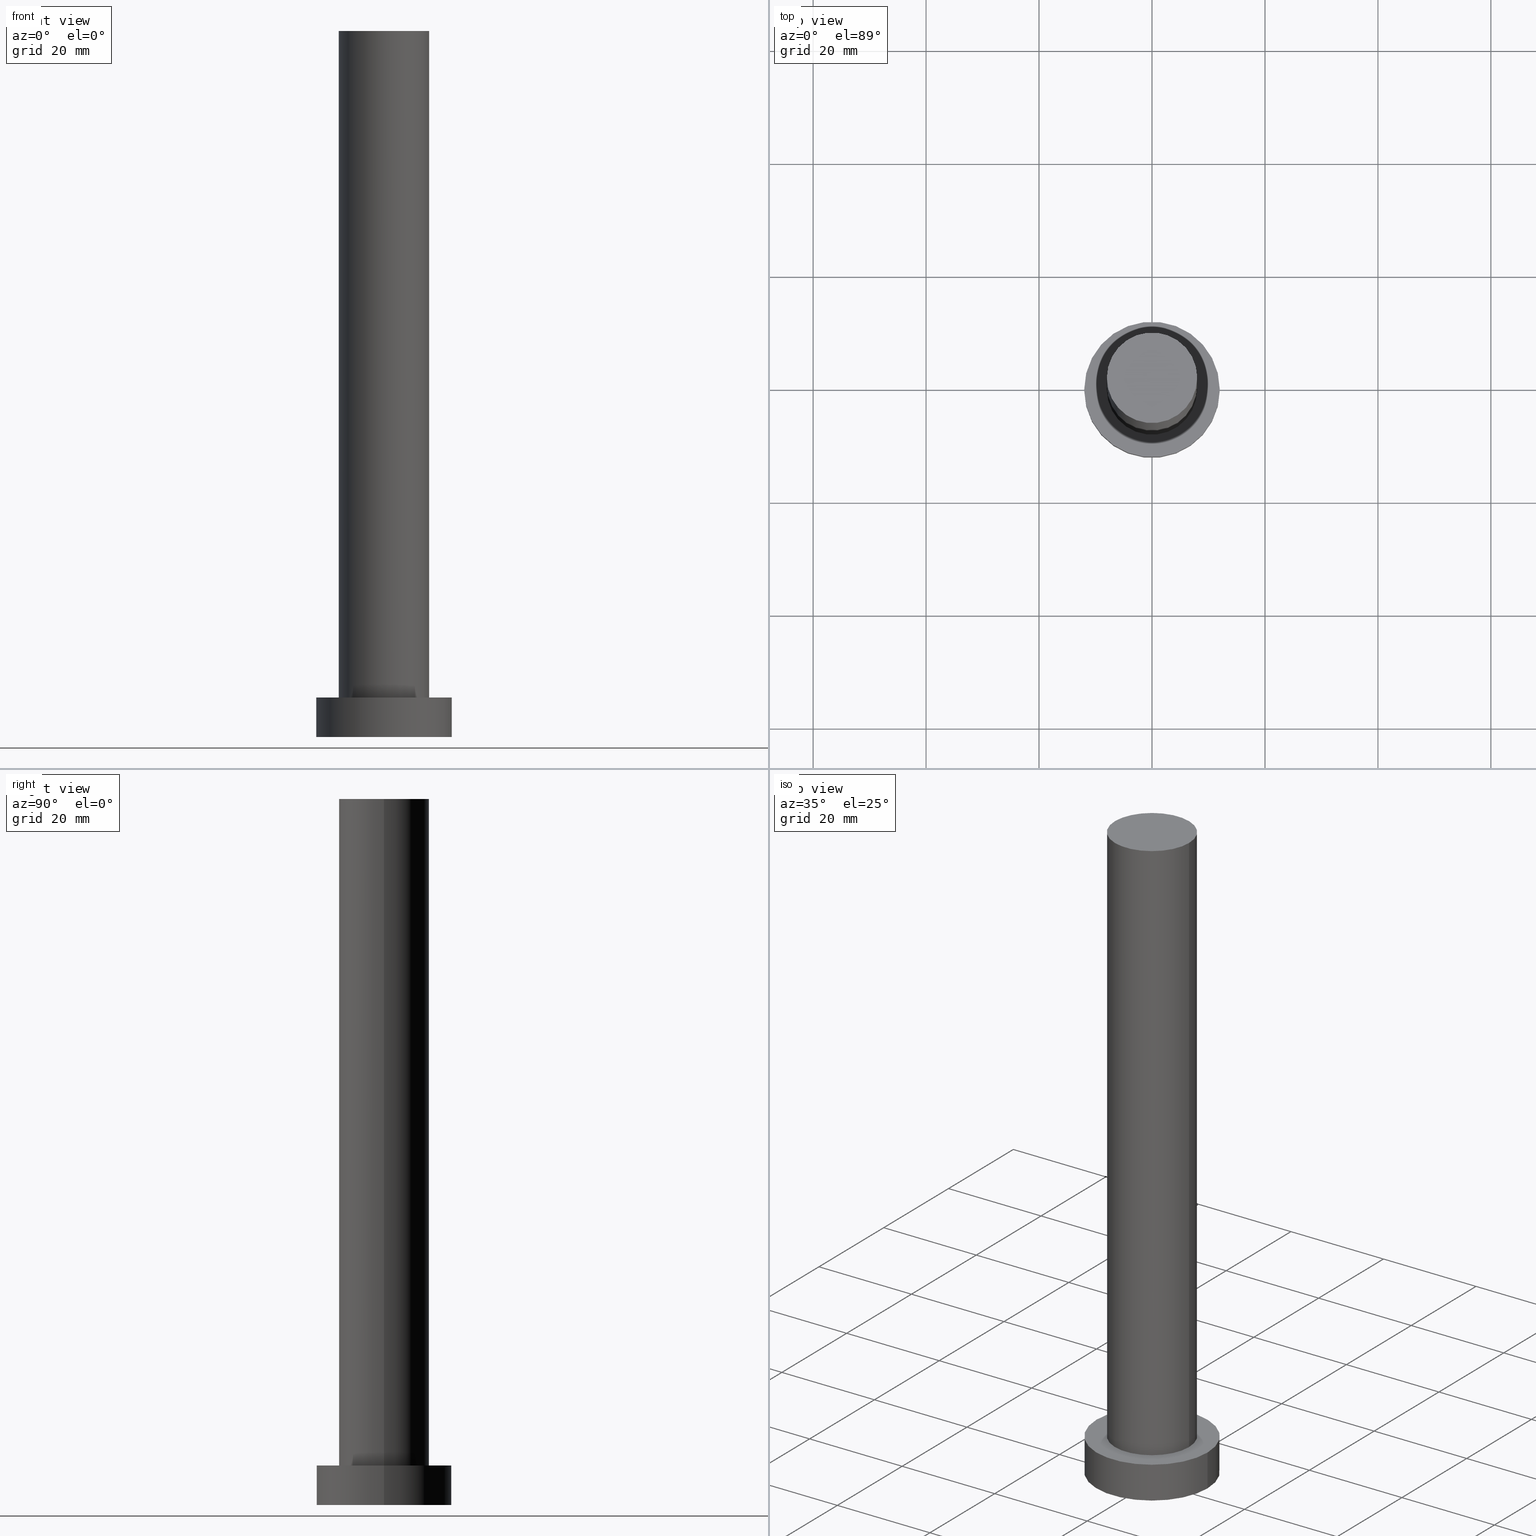
[diagram: canonical four-view strip — front | top / right | iso, engineering-drawing reading convention]
A machine part, canonical four-view strip (front | top / right | iso — engineering-drawing reading convention). The complete STEP part file that produces these views, byte-faithful:
ISO-10303-21;
HEADER;
FILE_DESCRIPTION (( 'STEP AP203' ),
    '1' );
FILE_NAME ('bd72.STEP',
    '2023-02-13T09:44:41',
    ( '' ),
    ( '' ),
    'SwSTEP 2.0',
    'SolidWorks 2019',
    '' );
FILE_SCHEMA (( 'CONFIG_CONTROL_DESIGN' ));
ENDSEC;

DATA;
#1 = ORIENTED_EDGE ( 'NONE', *, *, #98, .T. ) ;
#2 = SECURITY_CLASSIFICATION ( '', '', #28 ) ;
#3 = DIRECTION ( 'NONE',  ( 1.000000000000000000, 0.000000000000000000, 0.000000000000000000 ) ) ;
#4 = EDGE_LOOP ( 'NONE', ( #195, #255, #137, #97 ) ) ;
#5 = DIRECTION ( 'NONE',  ( 0.000000000000000000, 0.000000000000000000, 1.000000000000000000 ) ) ;
#6 = CARTESIAN_POINT ( 'NONE',  ( 0.000000000000000000, 0.000000000000000000, 125.0000000000000000 ) ) ;
#7 = DIRECTION ( 'NONE',  ( -0.000000000000000000, -0.000000000000000000, -1.000000000000000000 ) ) ;
#8 = DIRECTION ( 'NONE',  ( 0.000000000000000000, 0.000000000000000000, 1.000000000000000000 ) ) ;
#9 = UNCERTAINTY_MEASURE_WITH_UNIT (LENGTH_MEASURE( 1.000000000000000082E-05 ), #111, 'distance_accuracy_value', 'NONE');
#10 = DIRECTION ( 'NONE',  ( -0.000000000000000000, -0.000000000000000000, -1.000000000000000000 ) ) ;
#11 = DIRECTION ( 'NONE',  ( 0.000000000000000000, 0.000000000000000000, 1.000000000000000000 ) ) ;
#12 = LOCAL_TIME ( 10, 44, 41.00000000000000000, #109 ) ;
#13 = APPROVAL_ROLE ( '' ) ;
#14 = CC_DESIGN_APPROVAL ( #136, ( #229 ) ) ;
#15 = AXIS2_PLACEMENT_3D ( 'NONE', #240, #104, #42 ) ;
#16 = EDGE_CURVE ( 'NONE', #96, #80, #81, .T. ) ;
#17 = EDGE_LOOP ( 'NONE', ( #24, #103, #218, #159 ) ) ;
#18 = EDGE_CURVE ( 'NONE', #160, #100, #152, .T. ) ;
#19 = CARTESIAN_POINT ( 'NONE',  ( 0.000000000000000000, 0.000000000000000000, 125.0000000000000000 ) ) ;
#20 = AXIS2_PLACEMENT_3D ( 'NONE', #19, #85, #3 ) ;
#21 = DIRECTION ( 'NONE',  ( -0.000000000000000000, -0.000000000000000000, -1.000000000000000000 ) ) ;
#22 = DIRECTION ( 'NONE',  ( 0.000000000000000000, 0.000000000000000000, 1.000000000000000000 ) ) ;
#23 =( GEOMETRIC_REPRESENTATION_CONTEXT ( 3 ) GLOBAL_UNCERTAINTY_ASSIGNED_CONTEXT ( ( #9 ) ) GLOBAL_UNIT_ASSIGNED_CONTEXT ( ( #111, #74, #87 ) ) REPRESENTATION_CONTEXT ( 'NONE', 'WORKASPACE' ) );
#24 = ORIENTED_EDGE ( 'NONE', *, *, #98, .F. ) ;
#25 = APPLICATION_PROTOCOL_DEFINITION ( 'international standard', 'config_control_design', 1994, #79 ) ;
#26 = APPROVAL_STATUS ( 'not_yet_approved' ) ;
#27 = CALENDAR_DATE ( 2023, 13, 2 ) ;
#28 = SECURITY_CLASSIFICATION_LEVEL ( 'unclassified' ) ;
#29 = DIRECTION ( 'NONE',  ( -0.000000000000000000, -0.000000000000000000, -1.000000000000000000 ) ) ;
#30 = LOCAL_TIME ( 10, 44, 41.00000000000000000, #169 ) ;
#31 = SHAPE_DEFINITION_REPRESENTATION ( #54, #142 ) ;
#32 = AXIS2_PLACEMENT_3D ( 'NONE', #133, #94, #129 ) ;
#33 = ADVANCED_FACE ( 'NONE', ( #181 ), #164, .T. ) ;
#34 = PERSON ( 'NEUR�EN�', 'NEUR�EN�', 'NEUR�EN�', ('NEUR�EN�'), ('NEUR�EN�'), ('NEUR�EN�') ) ;
#35 = AXIS2_PLACEMENT_3D ( 'NONE', #228, #226, #168 ) ;
#36 = EDGE_CURVE ( 'NONE', #100, #160, #90, .T. ) ;
#37 = CARTESIAN_POINT ( 'NONE',  ( -12.00000000000000178, 0.000000000000000000, 7.000000000000000000 ) ) ;
#38 = DIRECTION ( 'NONE',  ( -0.000000000000000000, -0.000000000000000000, -1.000000000000000000 ) ) ;
#39 = DIRECTION ( 'NONE',  ( 0.000000000000000000, 0.000000000000000000, 1.000000000000000000 ) ) ;
#40 = CARTESIAN_POINT ( 'NONE',  ( 0.000000000000000000, 0.000000000000000000, 125.0000000000000000 ) ) ;
#41 = LOCAL_TIME ( 10, 44, 41.00000000000000000, #211 ) ;
#42 = DIRECTION ( 'NONE',  ( 1.000000000000000000, 0.000000000000000000, 0.000000000000000000 ) ) ;
#43 = CIRCLE ( 'NONE', #232, 8.000000000000000000 ) ;
#44 = CARTESIAN_POINT ( 'NONE',  ( 8.000000000000000000, 9.797174393178825657E-16, 7.000000000000000000 ) ) ;
#45 = AXIS2_PLACEMENT_3D ( 'NONE', #40, #5, #178 ) ;
#46 = PERSON_AND_ORGANIZATION_ROLE ( 'creator' ) ;
#47 = LINE ( 'NONE', #107, #95 ) ;
#48 = PERSON_AND_ORGANIZATION ( #34, #116 ) ;
#49 = PRODUCT_RELATED_PRODUCT_CATEGORY ( 'detail', '', ( #50 ) ) ;
#50 = PRODUCT ( 'bd72', 'bd72', '', ( #128 ) ) ;
#51 = PERSON_AND_ORGANIZATION ( #34, #116 ) ;
#52 = DIRECTION ( 'NONE',  ( 0.000000000000000000, 0.000000000000000000, 1.000000000000000000 ) ) ;
#53 = PERSON_AND_ORGANIZATION_ROLE ( 'creator' ) ;
#54 = PRODUCT_DEFINITION_SHAPE ( 'NONE', 'NONE',  #229 ) ;
#55 = CC_DESIGN_APPROVAL ( #234, ( #2 ) ) ;
#56 = VERTEX_POINT ( 'NONE', #123 ) ;
#57 = ORIENTED_EDGE ( 'NONE', *, *, #36, .T. ) ;
#58 = CC_DESIGN_PERSON_AND_ORGANIZATION_ASSIGNMENT ( #51, #253, ( #2 ) ) ;
#59 = VECTOR ( 'NONE', #88, 1000.000000000000000 ) ;
#60 = LOCAL_TIME ( 10, 44, 41.00000000000000000, #134 ) ;
#61 = EDGE_LOOP ( 'NONE', ( #254, #157, #215, #57 ) ) ;
#62 = CYLINDRICAL_SURFACE ( 'NONE', #246, 12.00000000000000178 ) ;
#63 = FACE_OUTER_BOUND ( 'NONE', #193, .T. ) ;
#64 = AXIS2_PLACEMENT_3D ( 'NONE', #65, #144, #217 ) ;
#65 = CARTESIAN_POINT ( 'NONE',  ( 0.000000000000000000, 0.000000000000000000, 0.000000000000000000 ) ) ;
#66 = CC_DESIGN_DATE_AND_TIME_ASSIGNMENT ( #220, #186, ( #229 ) ) ;
#67 = DIRECTION ( 'NONE',  ( -1.000000000000000000, 0.000000000000000000, 0.000000000000000000 ) ) ;
#68 = CC_DESIGN_SECURITY_CLASSIFICATION ( #2, ( #106 ) ) ;
#69 = FACE_OUTER_BOUND ( 'NONE', #17, .T. ) ;
#70 = AXIS2_PLACEMENT_3D ( 'NONE', #190, #148, #132 ) ;
#71 = PERSON_AND_ORGANIZATION ( #34, #116 ) ;
#72 = PLANE ( 'NONE',  #32 ) ;
#73 = APPROVAL_DATE_TIME ( #227, #234 ) ;
#74 =( NAMED_UNIT ( * ) PLANE_ANGLE_UNIT ( ) SI_UNIT ( $, .RADIAN. ) );
#75 = CALENDAR_DATE ( 2023, 13, 2 ) ;
#76 = CARTESIAN_POINT ( 'NONE',  ( 12.00000000000000178, 1.469576158976824144E-15, 0.000000000000000000 ) ) ;
#77 = APPLICATION_PROTOCOL_DEFINITION ( 'international standard', 'config_control_design', 1994, #252 ) ;
#78 = ORIENTED_EDGE ( 'NONE', *, *, #18, .F. ) ;
#79 = APPLICATION_CONTEXT ( 'configuration controlled 3d designs of mechanical parts and assemblies' ) ;
#80 = VERTEX_POINT ( 'NONE', #37 ) ;
#81 = CIRCLE ( 'NONE', #102, 12.00000000000000178 ) ;
#82 = FACE_OUTER_BOUND ( 'NONE', #61, .T. ) ;
#83 = CC_DESIGN_PERSON_AND_ORGANIZATION_ASSIGNMENT ( #115, #53, ( #229 ) ) ;
#84 = VERTEX_POINT ( 'NONE', #203 ) ;
#85 = DIRECTION ( 'NONE',  ( 0.000000000000000000, 0.000000000000000000, 1.000000000000000000 ) ) ;
#86 = ORIENTED_EDGE ( 'NONE', *, *, #36, .F. ) ;
#87 =( NAMED_UNIT ( * ) SI_UNIT ( $, .STERADIAN. ) SOLID_ANGLE_UNIT ( ) );
#88 = DIRECTION ( 'NONE',  ( -0.000000000000000000, -0.000000000000000000, -1.000000000000000000 ) ) ;
#89 = CC_DESIGN_PERSON_AND_ORGANIZATION_ASSIGNMENT ( #71, #125, ( #106 ) ) ;
#90 = CIRCLE ( 'NONE', #15, 12.00000000000000178 ) ;
#91 = DATE_TIME_ROLE ( 'classification_date' ) ;
#92 = DIRECTION ( 'NONE',  ( -0.000000000000000000, -0.000000000000000000, -1.000000000000000000 ) ) ;
#93 = PERSON_AND_ORGANIZATION_ROLE ( 'design_owner' ) ;
#94 = DIRECTION ( 'NONE',  ( 0.000000000000000000, 0.000000000000000000, 1.000000000000000000 ) ) ;
#95 = VECTOR ( 'NONE', #92, 1000.000000000000000 ) ;
#96 = VERTEX_POINT ( 'NONE', #121 ) ;
#97 = ORIENTED_EDGE ( 'NONE', *, *, #197, .T. ) ;
#98 = EDGE_CURVE ( 'NONE', #56, #84, #131, .T. ) ;
#99 = CIRCLE ( 'NONE', #175, 8.000000000000000000 ) ;
#100 = VERTEX_POINT ( 'NONE', #196 ) ;
#101 = EDGE_CURVE ( 'NONE', #84, #56, #112, .T. ) ;
#102 = AXIS2_PLACEMENT_3D ( 'NONE', #213, #22, #216 ) ;
#103 = ORIENTED_EDGE ( 'NONE', *, *, #162, .T. ) ;
#104 = DIRECTION ( 'NONE',  ( 0.000000000000000000, 0.000000000000000000, 1.000000000000000000 ) ) ;
#105 = FACE_OUTER_BOUND ( 'NONE', #4, .T. ) ;
#106 = PRODUCT_DEFINITION_FORMATION_WITH_SPECIFIED_SOURCE ( 'LIBOVOLN�', '', #50, .NOT_KNOWN. ) ;
#107 = CARTESIAN_POINT ( 'NONE',  ( 8.000000000000000000, 9.797174393178825657E-16, 125.0000000000000000 ) ) ;
#108 = CARTESIAN_POINT ( 'NONE',  ( -8.000000000000000000, 0.000000000000000000, 7.000000000000000000 ) ) ;
#109 = COORDINATED_UNIVERSAL_TIME_OFFSET ( 1, 0, .AHEAD. ) ;
#110 = ADVANCED_FACE ( 'NONE', ( #82 ), #62, .T. ) ;
#111 =( LENGTH_UNIT ( ) NAMED_UNIT ( * ) SI_UNIT ( .MILLI., .METRE. ) );
#112 = CIRCLE ( 'NONE', #20, 8.000000000000000000 ) ;
#113 = COORDINATED_UNIVERSAL_TIME_OFFSET ( 1, 0, .AHEAD. ) ;
#114 = EDGE_CURVE ( 'NONE', #84, #145, #200, .T. ) ;
#115 = PERSON_AND_ORGANIZATION ( #34, #116 ) ;
#116 = ORGANIZATION ( 'NEUR�EN�', 'NEUR�EN�', '' ) ;
#117 = ORIENTED_EDGE ( 'NONE', *, *, #201, .T. ) ;
#118 = ADVANCED_FACE ( 'NONE', ( #63 ), #238, .F. ) ;
#119 = APPROVAL_PERSON_ORGANIZATION ( #208, #136, #171 ) ;
#120 = ADVANCED_FACE ( 'NONE', ( #105 ), #184, .T. ) ;
#121 = CARTESIAN_POINT ( 'NONE',  ( 12.00000000000000178, 1.469576158976824144E-15, 7.000000000000000000 ) ) ;
#122 = DIRECTION ( 'NONE',  ( 1.000000000000000000, 0.000000000000000000, 0.000000000000000000 ) ) ;
#123 = CARTESIAN_POINT ( 'NONE',  ( 8.000000000000000000, 9.797174393178825657E-16, 125.0000000000000000 ) ) ;
#124 = AXIS2_PLACEMENT_3D ( 'NONE', #183, #21, #67 ) ;
#125 = PERSON_AND_ORGANIZATION_ROLE ( 'design_supplier' ) ;
#126 = DESIGN_CONTEXT ( 'detailed design', #252, 'design' ) ;
#127 = DIRECTION ( 'NONE',  ( 1.000000000000000000, 0.000000000000000000, 0.000000000000000000 ) ) ;
#128 = MECHANICAL_CONTEXT ( 'NONE', #79, 'mechanical' ) ;
#129 = DIRECTION ( 'NONE',  ( 1.000000000000000000, 0.000000000000000000, -0.000000000000000000 ) ) ;
#130 = CALENDAR_DATE ( 2023, 13, 2 ) ;
#131 = CIRCLE ( 'NONE', #45, 8.000000000000000000 ) ;
#132 = DIRECTION ( 'NONE',  ( 1.000000000000000000, 0.000000000000000000, 0.000000000000000000 ) ) ;
#133 = CARTESIAN_POINT ( 'NONE',  ( 0.000000000000000000, 0.000000000000000000, 7.000000000000000000 ) ) ;
#134 = COORDINATED_UNIVERSAL_TIME_OFFSET ( 1, 0, .AHEAD. ) ;
#135 = AXIS2_PLACEMENT_3D ( 'NONE', #244, #10, #149 ) ;
#136 = APPROVAL ( #209, 'NEUR�EN�' ) ;
#137 = ORIENTED_EDGE ( 'NONE', *, *, #114, .T. ) ;
#138 = ORIENTED_EDGE ( 'NONE', *, *, #18, .T. ) ;
#139 = EDGE_LOOP ( 'NONE', ( #141, #173 ) ) ;
#140 = CARTESIAN_POINT ( 'NONE',  ( 0.000000000000000000, 0.000000000000000000, 7.000000000000000000 ) ) ;
#141 = ORIENTED_EDGE ( 'NONE', *, *, #197, .F. ) ;
#142 = ADVANCED_BREP_SHAPE_REPRESENTATION ( 'bd72', ( #176, #70 ), #23 ) ;
#143 = CC_DESIGN_PERSON_AND_ORGANIZATION_ASSIGNMENT ( #48, #46, ( #106 ) ) ;
#144 = DIRECTION ( 'NONE',  ( 0.000000000000000000, 0.000000000000000000, 1.000000000000000000 ) ) ;
#145 = VERTEX_POINT ( 'NONE', #108 ) ;
#146 = CYLINDRICAL_SURFACE ( 'NONE', #135, 8.000000000000000000 ) ;
#147 = PERSON_AND_ORGANIZATION ( #34, #116 ) ;
#148 = DIRECTION ( 'NONE',  ( 0.000000000000000000, 0.000000000000000000, 1.000000000000000000 ) ) ;
#149 = DIRECTION ( 'NONE',  ( -1.000000000000000000, 0.000000000000000000, 0.000000000000000000 ) ) ;
#150 = APPROVAL_ROLE ( '' ) ;
#151 = CARTESIAN_POINT ( 'NONE',  ( 0.000000000000000000, 0.000000000000000000, 125.0000000000000000 ) ) ;
#152 = CIRCLE ( 'NONE', #235, 12.00000000000000178 ) ;
#153 = DATE_AND_TIME ( #205, #167 ) ;
#154 = ORIENTED_EDGE ( 'NONE', *, *, #191, .T. ) ;
#155 = EDGE_CURVE ( 'NONE', #192, #145, #99, .T. ) ;
#156 = APPROVAL ( #188, 'NEUR�EN�' ) ;
#157 = ORIENTED_EDGE ( 'NONE', *, *, #191, .F. ) ;
#158 = CC_DESIGN_APPROVAL ( #156, ( #106 ) ) ;
#159 = ORIENTED_EDGE ( 'NONE', *, *, #114, .F. ) ;
#160 = VERTEX_POINT ( 'NONE', #76 ) ;
#161 = CARTESIAN_POINT ( 'NONE',  ( -8.000000000000000000, 0.000000000000000000, 125.0000000000000000 ) ) ;
#162 = EDGE_CURVE ( 'NONE', #56, #192, #47, .T. ) ;
#163 = ORIENTED_EDGE ( 'NONE', *, *, #101, .T. ) ;
#164 = CYLINDRICAL_SURFACE ( 'NONE', #124, 12.00000000000000178 ) ;
#165 = CC_DESIGN_PERSON_AND_ORGANIZATION_ASSIGNMENT ( #223, #93, ( #50 ) ) ;
#166 = CARTESIAN_POINT ( 'NONE',  ( 0.000000000000000000, 0.000000000000000000, 7.000000000000000000 ) ) ;
#167 = LOCAL_TIME ( 10, 44, 41.00000000000000000, #113 ) ;
#168 = DIRECTION ( 'NONE',  ( 1.000000000000000000, 0.000000000000000000, 0.000000000000000000 ) ) ;
#169 = COORDINATED_UNIVERSAL_TIME_OFFSET ( 1, 0, .AHEAD. ) ;
#170 = FACE_OUTER_BOUND ( 'NONE', #199, .T. ) ;
#171 = APPROVAL_ROLE ( '' ) ;
#172 = PERSON_AND_ORGANIZATION ( #34, #116 ) ;
#173 = ORIENTED_EDGE ( 'NONE', *, *, #155, .F. ) ;
#174 = EDGE_LOOP ( 'NONE', ( #163, #1 ) ) ;
#175 = AXIS2_PLACEMENT_3D ( 'NONE', #251, #8, #127 ) ;
#176 = MANIFOLD_SOLID_BREP ( 'P�idat vysunut�m3', #212 ) ;
#177 = ORIENTED_EDGE ( 'NONE', *, *, #16, .F. ) ;
#178 = DIRECTION ( 'NONE',  ( 1.000000000000000000, 0.000000000000000000, 0.000000000000000000 ) ) ;
#179 = CIRCLE ( 'NONE', #35, 12.00000000000000178 ) ;
#180 = ORIENTED_EDGE ( 'NONE', *, *, #222, .F. ) ;
#181 = FACE_OUTER_BOUND ( 'NONE', #233, .T. ) ;
#182 = ADVANCED_FACE ( 'NONE', ( #221 ), #210, .T. ) ;
#183 = CARTESIAN_POINT ( 'NONE',  ( 0.000000000000000000, 0.000000000000000000, 7.000000000000000000 ) ) ;
#184 = CYLINDRICAL_SURFACE ( 'NONE', #239, 8.000000000000000000 ) ;
#185 = CARTESIAN_POINT ( 'NONE',  ( -12.00000000000000178, 0.000000000000000000, 7.000000000000000000 ) ) ;
#186 = DATE_TIME_ROLE ( 'creation_date' ) ;
#187 = LINE ( 'NONE', #248, #59 ) ;
#188 = APPROVAL_STATUS ( 'not_yet_approved' ) ;
#189 = FACE_BOUND ( 'NONE', #139, .T. ) ;
#190 = CARTESIAN_POINT ( 'NONE',  ( 0.000000000000000000, 0.000000000000000000, 0.000000000000000000 ) ) ;
#191 = EDGE_CURVE ( 'NONE', #80, #96, #179, .T. ) ;
#192 = VERTEX_POINT ( 'NONE', #44 ) ;
#193 = EDGE_LOOP ( 'NONE', ( #86, #78 ) ) ;
#194 = ORIENTED_EDGE ( 'NONE', *, *, #16, .T. ) ;
#195 = ORIENTED_EDGE ( 'NONE', *, *, #162, .F. ) ;
#196 = CARTESIAN_POINT ( 'NONE',  ( -12.00000000000000178, 0.000000000000000000, 0.000000000000000000 ) ) ;
#197 = EDGE_CURVE ( 'NONE', #145, #192, #43, .T. ) ;
#198 = DIRECTION ( 'NONE',  ( -1.000000000000000000, 0.000000000000000000, 0.000000000000000000 ) ) ;
#199 = EDGE_LOOP ( 'NONE', ( #154, #194 ) ) ;
#200 = LINE ( 'NONE', #161, #231 ) ;
#201 = EDGE_CURVE ( 'NONE', #96, #160, #187, .T. ) ;
#202 = APPROVAL_PERSON_ORGANIZATION ( #147, #234, #13 ) ;
#203 = CARTESIAN_POINT ( 'NONE',  ( -8.000000000000000000, 0.000000000000000000, 125.0000000000000000 ) ) ;
#204 = DIRECTION ( 'NONE',  ( -1.000000000000000000, 0.000000000000000000, 0.000000000000000000 ) ) ;
#205 = CALENDAR_DATE ( 2023, 13, 2 ) ;
#206 = ADVANCED_FACE ( 'NONE', ( #189, #170 ), #72, .T. ) ;
#207 = LINE ( 'NONE', #185, #242 ) ;
#208 = PERSON_AND_ORGANIZATION ( #34, #116 ) ;
#209 = APPROVAL_STATUS ( 'not_yet_approved' ) ;
#210 = PLANE ( 'NONE',  #219 ) ;
#211 = COORDINATED_UNIVERSAL_TIME_OFFSET ( 1, 0, .AHEAD. ) ;
#212 = CLOSED_SHELL ( 'NONE', ( #245, #33, #110, #206, #118, #120, #182 ) ) ;
#213 = CARTESIAN_POINT ( 'NONE',  ( 0.000000000000000000, 0.000000000000000000, 7.000000000000000000 ) ) ;
#214 = CC_DESIGN_DATE_AND_TIME_ASSIGNMENT ( #153, #91, ( #2 ) ) ;
#215 = ORIENTED_EDGE ( 'NONE', *, *, #222, .T. ) ;
#216 = DIRECTION ( 'NONE',  ( 1.000000000000000000, 0.000000000000000000, 0.000000000000000000 ) ) ;
#217 = DIRECTION ( 'NONE',  ( 1.000000000000000000, 0.000000000000000000, -0.000000000000000000 ) ) ;
#218 = ORIENTED_EDGE ( 'NONE', *, *, #155, .T. ) ;
#219 = AXIS2_PLACEMENT_3D ( 'NONE', #151, #11, #241 ) ;
#220 = DATE_AND_TIME ( #75, #30 ) ;
#221 = FACE_OUTER_BOUND ( 'NONE', #174, .T. ) ;
#222 = EDGE_CURVE ( 'NONE', #80, #100, #207, .T. ) ;
#223 = PERSON_AND_ORGANIZATION ( #34, #116 ) ;
#224 = DIRECTION ( 'NONE',  ( 1.000000000000000000, 0.000000000000000000, 0.000000000000000000 ) ) ;
#225 = APPROVAL_DATE_TIME ( #243, #156 ) ;
#226 = DIRECTION ( 'NONE',  ( 0.000000000000000000, 0.000000000000000000, 1.000000000000000000 ) ) ;
#227 = DATE_AND_TIME ( #27, #41 ) ;
#228 = CARTESIAN_POINT ( 'NONE',  ( 0.000000000000000000, 0.000000000000000000, 7.000000000000000000 ) ) ;
#229 = PRODUCT_DEFINITION ( 'NEZN�M�', '', #106, #126 ) ;
#230 = APPROVAL_DATE_TIME ( #249, #136 ) ;
#231 = VECTOR ( 'NONE', #237, 1000.000000000000000 ) ;
#232 = AXIS2_PLACEMENT_3D ( 'NONE', #166, #52, #224 ) ;
#233 = EDGE_LOOP ( 'NONE', ( #177, #117, #138, #180 ) ) ;
#234 = APPROVAL ( #26, 'NEUR�EN�' ) ;
#235 = AXIS2_PLACEMENT_3D ( 'NONE', #236, #39, #122 ) ;
#236 = CARTESIAN_POINT ( 'NONE',  ( 0.000000000000000000, 0.000000000000000000, 0.000000000000000000 ) ) ;
#237 = DIRECTION ( 'NONE',  ( -0.000000000000000000, -0.000000000000000000, -1.000000000000000000 ) ) ;
#238 = PLANE ( 'NONE',  #64 ) ;
#239 = AXIS2_PLACEMENT_3D ( 'NONE', #6, #29, #204 ) ;
#240 = CARTESIAN_POINT ( 'NONE',  ( 0.000000000000000000, 0.000000000000000000, 0.000000000000000000 ) ) ;
#241 = DIRECTION ( 'NONE',  ( 1.000000000000000000, 0.000000000000000000, -0.000000000000000000 ) ) ;
#242 = VECTOR ( 'NONE', #7, 1000.000000000000000 ) ;
#243 = DATE_AND_TIME ( #130, #12 ) ;
#244 = CARTESIAN_POINT ( 'NONE',  ( 0.000000000000000000, 0.000000000000000000, 125.0000000000000000 ) ) ;
#245 = ADVANCED_FACE ( 'NONE', ( #69 ), #146, .T. ) ;
#246 = AXIS2_PLACEMENT_3D ( 'NONE', #140, #38, #198 ) ;
#247 = CALENDAR_DATE ( 2023, 13, 2 ) ;
#248 = CARTESIAN_POINT ( 'NONE',  ( 12.00000000000000178, 1.469576158976824144E-15, 7.000000000000000000 ) ) ;
#249 = DATE_AND_TIME ( #247, #60 ) ;
#250 = APPROVAL_PERSON_ORGANIZATION ( #172, #156, #150 ) ;
#251 = CARTESIAN_POINT ( 'NONE',  ( 0.000000000000000000, 0.000000000000000000, 7.000000000000000000 ) ) ;
#252 = APPLICATION_CONTEXT ( 'configuration controlled 3d designs of mechanical parts and assemblies' ) ;
#253 = PERSON_AND_ORGANIZATION_ROLE ( 'classification_officer' ) ;
#254 = ORIENTED_EDGE ( 'NONE', *, *, #201, .F. ) ;
#255 = ORIENTED_EDGE ( 'NONE', *, *, #101, .F. ) ;
ENDSEC;
END-ISO-10303-21;
